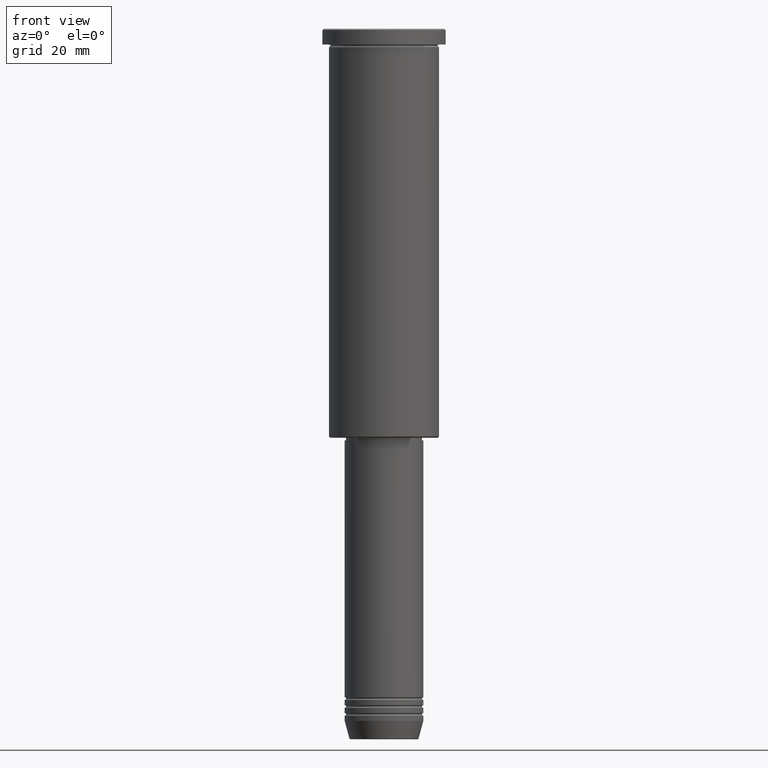
[diagram: clean part render]
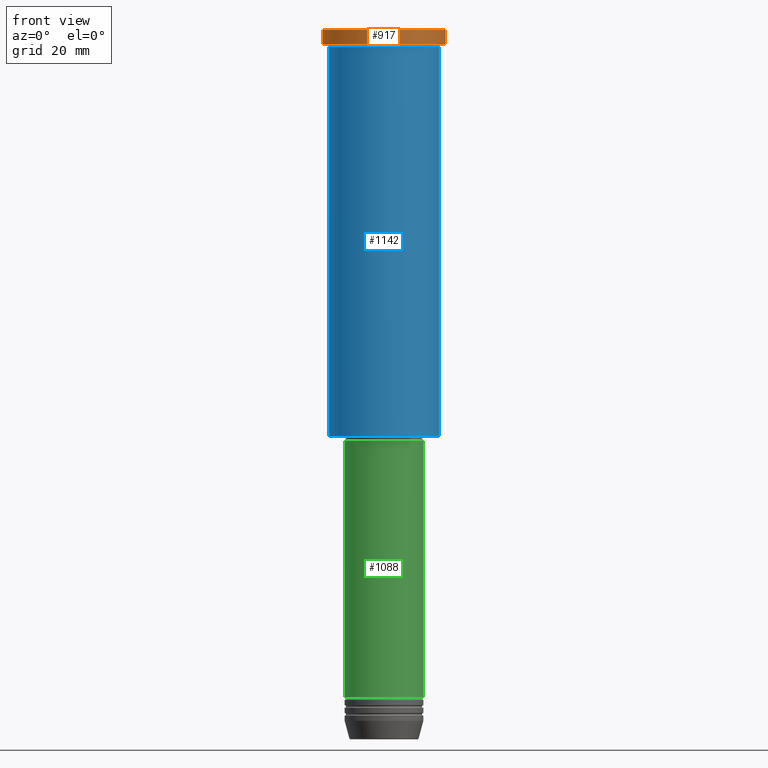
[diagram: same view with three faces highlighted in distinct colors, each labeled with its STEP entity id]
A machine part, front view with three faces highlighted in distinct colors.
Their STEP definitions:

[orange] entity #917 — the highlighted cylindrical surface (partial cylindrical patch) has radius 23.5 mm, axis along (-0, -0, 1).
#2 = CARTESIAN_POINT ( 'NONE',  ( 23.50000000000000000, 0.000000000000000000, 0.000000000000000000 ) ) ;
#45 = ORIENTED_EDGE ( 'NONE', *, *, #821, .T. ) ;
#116 = CARTESIAN_POINT ( 'NONE',  ( -23.50000000000000000, 2.877919977996280320E-15, -0.5000000000000004441 ) ) ;
#215 = CYLINDRICAL_SURFACE ( 'NONE', #244, 23.50000000000000000 ) ;
#244 = AXIS2_PLACEMENT_3D ( 'NONE', #873, #1127, #967 ) ;
#315 = DIRECTION ( 'NONE',  ( -0.000000000000000000, -0.000000000000000000, 1.000000000000000000 ) ) ;
#368 = CARTESIAN_POINT ( 'NONE',  ( -23.50000000000000000, 2.877919977996280320E-15, 0.000000000000000000 ) ) ;
#398 = VECTOR ( 'NONE', #466, 1000.000000000000000 ) ;
#422 = VERTEX_POINT ( 'NONE', #116 ) ;
#424 = DIRECTION ( 'NONE',  ( -0.000000000000000000, -0.000000000000000000, 1.000000000000000000 ) ) ;
#455 = AXIS2_PLACEMENT_3D ( 'NONE', #794, #424, #690 ) ;
#466 = DIRECTION ( 'NONE',  ( -0.000000000000000000, -0.000000000000000000, 1.000000000000000000 ) ) ;
#511 = VECTOR ( 'NONE', #315, 1000.000000000000000 ) ;
#537 = ORIENTED_EDGE ( 'NONE', *, *, #1109, .F. ) ;
#562 = CARTESIAN_POINT ( 'NONE',  ( 23.50000000000000000, 0.000000000000000000, -0.5000000000000004441 ) ) ;
#594 = FACE_OUTER_BOUND ( 'NONE', #1115, .T. ) ;
#611 = CARTESIAN_POINT ( 'NONE',  ( 0.000000000000000000, 0.000000000000000000, -0.5000000000000004441 ) ) ;
#639 = ORIENTED_EDGE ( 'NONE', *, *, #1056, .T. ) ;
#688 = AXIS2_PLACEMENT_3D ( 'NONE', #611, #904, #1162 ) ;
#690 = DIRECTION ( 'NONE',  ( 1.000000000000000000, 0.000000000000000000, 0.000000000000000000 ) ) ;
#775 = VERTEX_POINT ( 'NONE', #1145 ) ;
#776 = LINE ( 'NONE', #2, #511 ) ;
#794 = CARTESIAN_POINT ( 'NONE',  ( 0.000000000000000000, 0.000000000000000000, -5.999999999999994671 ) ) ;
#821 = EDGE_CURVE ( 'NONE', #926, #1128, #776, .T. ) ;
#873 = CARTESIAN_POINT ( 'NONE',  ( 0.000000000000000000, 0.000000000000000000, 0.000000000000000000 ) ) ;
#876 = EDGE_CURVE ( 'NONE', #775, #926, #1117, .T. ) ;
#891 = CARTESIAN_POINT ( 'NONE',  ( 23.50000000000000000, 0.000000000000000000, -5.999999999999994671 ) ) ;
#893 = ORIENTED_EDGE ( 'NONE', *, *, #876, .T. ) ;
#904 = DIRECTION ( 'NONE',  ( 0.000000000000000000, 0.000000000000000000, -1.000000000000000000 ) ) ;
#917 = ADVANCED_FACE ( 'NONE', ( #594 ), #215, .T. ) ;
#926 = VERTEX_POINT ( 'NONE', #891 ) ;
#967 = DIRECTION ( 'NONE',  ( 1.000000000000000000, 0.000000000000000000, 0.000000000000000000 ) ) ;
#1056 = EDGE_CURVE ( 'NONE', #1128, #422, #1135, .T. ) ;
#1084 = LINE ( 'NONE', #368, #398 ) ;
#1109 = EDGE_CURVE ( 'NONE', #775, #422, #1084, .T. ) ;
#1115 = EDGE_LOOP ( 'NONE', ( #537, #893, #45, #639 ) ) ;
#1117 = CIRCLE ( 'NONE', #455, 23.50000000000000000 ) ;
#1127 = DIRECTION ( 'NONE',  ( -0.000000000000000000, -0.000000000000000000, 1.000000000000000000 ) ) ;
#1128 = VERTEX_POINT ( 'NONE', #562 ) ;
#1135 = CIRCLE ( 'NONE', #688, 23.50000000000000000 ) ;
#1145 = CARTESIAN_POINT ( 'NONE',  ( -23.50000000000000000, 2.877919977996280320E-15, -5.999999999999994671 ) ) ;
#1162 = DIRECTION ( 'NONE',  ( 1.000000000000000000, 0.000000000000000000, 0.000000000000000000 ) ) ;

[blue] entity #1142 — the highlighted cylindrical surface (partial cylindrical patch) has radius 21 mm, axis along (-0, -0, 1).
#3 = DIRECTION ( 'NONE',  ( -0.000000000000000000, -0.000000000000000000, 1.000000000000000000 ) ) ;
#7 = DIRECTION ( 'NONE',  ( -0.000000000000000000, -0.000000000000000000, 1.000000000000000000 ) ) ;
#99 = EDGE_CURVE ( 'NONE', #737, #374, #1111, .T. ) ;
#104 = FACE_OUTER_BOUND ( 'NONE', #1105, .T. ) ;
#113 = CARTESIAN_POINT ( 'NONE',  ( 21.00000000000000000, 0.000000000000000000, 0.000000000000000000 ) ) ;
#170 = AXIS2_PLACEMENT_3D ( 'NONE', #733, #199, #1001 ) ;
#196 = CARTESIAN_POINT ( 'NONE',  ( 0.000000000000000000, 0.000000000000000000, -6.999999999999994671 ) ) ;
#199 = DIRECTION ( 'NONE',  ( -0.000000000000000000, -0.000000000000000000, 1.000000000000000000 ) ) ;
#230 = AXIS2_PLACEMENT_3D ( 'NONE', #196, #7, #953 ) ;
#341 = CARTESIAN_POINT ( 'NONE',  ( 21.00000000000000000, 0.000000000000000000, -155.4999999999999716 ) ) ;
#374 = VERTEX_POINT ( 'NONE', #648 ) ;
#392 = VECTOR ( 'NONE', #393, 1000.000000000000000 ) ;
#393 = DIRECTION ( 'NONE',  ( -0.000000000000000000, -0.000000000000000000, 1.000000000000000000 ) ) ;
#469 = CARTESIAN_POINT ( 'NONE',  ( 0.000000000000000000, 0.000000000000000000, -155.4999999999999716 ) ) ;
#492 = LINE ( 'NONE', #113, #392 ) ;
#566 = VECTOR ( 'NONE', #645, 1000.000000000000000 ) ;
#595 = EDGE_CURVE ( 'NONE', #374, #1099, #720, .T. ) ;
#597 = EDGE_CURVE ( 'NONE', #962, #1099, #492, .T. ) ;
#623 = AXIS2_PLACEMENT_3D ( 'NONE', #469, #3, #739 ) ;
#645 = DIRECTION ( 'NONE',  ( -0.000000000000000000, -0.000000000000000000, 1.000000000000000000 ) ) ;
#648 = CARTESIAN_POINT ( 'NONE',  ( -21.00000000000000000, 2.571758278209441661E-15, -6.999999999999994671 ) ) ;
#657 = CARTESIAN_POINT ( 'NONE',  ( -21.00000000000000000, 2.571758278209441661E-15, 0.000000000000000000 ) ) ;
#720 = CIRCLE ( 'NONE', #230, 21.00000000000000000 ) ;
#724 = CARTESIAN_POINT ( 'NONE',  ( 21.00000000000000000, 0.000000000000000000, -6.999999999999994671 ) ) ;
#730 = ORIENTED_EDGE ( 'NONE', *, *, #597, .T. ) ;
#733 = CARTESIAN_POINT ( 'NONE',  ( 0.000000000000000000, 0.000000000000000000, 0.000000000000000000 ) ) ;
#737 = VERTEX_POINT ( 'NONE', #771 ) ;
#739 = DIRECTION ( 'NONE',  ( -1.000000000000000000, 0.000000000000000000, 0.000000000000000000 ) ) ;
#750 = ORIENTED_EDGE ( 'NONE', *, *, #99, .F. ) ;
#755 = ORIENTED_EDGE ( 'NONE', *, *, #1161, .T. ) ;
#771 = CARTESIAN_POINT ( 'NONE',  ( -21.00000000000000000, 2.571758278209441661E-15, -155.4999999999999716 ) ) ;
#785 = CIRCLE ( 'NONE', #623, 21.00000000000000000 ) ;
#939 = CYLINDRICAL_SURFACE ( 'NONE', #170, 21.00000000000000000 ) ;
#951 = ORIENTED_EDGE ( 'NONE', *, *, #595, .F. ) ;
#953 = DIRECTION ( 'NONE',  ( 1.000000000000000000, 0.000000000000000000, 0.000000000000000000 ) ) ;
#962 = VERTEX_POINT ( 'NONE', #341 ) ;
#1001 = DIRECTION ( 'NONE',  ( 1.000000000000000000, 0.000000000000000000, 0.000000000000000000 ) ) ;
#1099 = VERTEX_POINT ( 'NONE', #724 ) ;
#1105 = EDGE_LOOP ( 'NONE', ( #750, #755, #730, #951 ) ) ;
#1111 = LINE ( 'NONE', #657, #566 ) ;
#1142 = ADVANCED_FACE ( 'NONE', ( #104 ), #939, .T. ) ;
#1161 = EDGE_CURVE ( 'NONE', #737, #962, #785, .T. ) ;

[green] entity #1088 — the highlighted cylindrical surface (partial cylindrical patch) has radius 15 mm, axis along (-0, -0, 1).
#42 = EDGE_CURVE ( 'NONE', #95, #1170, #251, .T. ) ;
#95 = VERTEX_POINT ( 'NONE', #274 ) ;
#115 = ORIENTED_EDGE ( 'NONE', *, *, #179, .T. ) ;
#164 = AXIS2_PLACEMENT_3D ( 'NONE', #1168, #734, #708 ) ;
#172 = DIRECTION ( 'NONE',  ( -0.000000000000000000, -0.000000000000000000, 1.000000000000000000 ) ) ;
#179 = EDGE_CURVE ( 'NONE', #519, #95, #841, .T. ) ;
#242 = DIRECTION ( 'NONE',  ( 1.000000000000000000, 0.000000000000000000, 0.000000000000000000 ) ) ;
#251 = LINE ( 'NONE', #831, #430 ) ;
#274 = CARTESIAN_POINT ( 'NONE',  ( 15.00000000000000000, 0.000000000000000000, -255.0000000000000000 ) ) ;
#316 = EDGE_CURVE ( 'NONE', #1074, #1170, #619, .T. ) ;
#370 = EDGE_CURVE ( 'NONE', #519, #1074, #465, .T. ) ;
#411 = CARTESIAN_POINT ( 'NONE',  ( -15.00000000000000000, 1.836970198721029589E-15, -255.0000000000000000 ) ) ;
#430 = VECTOR ( 'NONE', #1078, 1000.000000000000000 ) ;
#451 = CARTESIAN_POINT ( 'NONE',  ( 0.000000000000000000, 0.000000000000000000, -157.0000000000000000 ) ) ;
#465 = LINE ( 'NONE', #909, #804 ) ;
#519 = VERTEX_POINT ( 'NONE', #411 ) ;
#616 = FACE_OUTER_BOUND ( 'NONE', #725, .T. ) ;
#619 = CIRCLE ( 'NONE', #1114, 15.00000000000000000 ) ;
#634 = DIRECTION ( 'NONE',  ( 1.000000000000000000, 0.000000000000000000, 0.000000000000000000 ) ) ;
#708 = DIRECTION ( 'NONE',  ( 1.000000000000000000, 0.000000000000000000, 0.000000000000000000 ) ) ;
#716 = CYLINDRICAL_SURFACE ( 'NONE', #1119, 15.00000000000000000 ) ;
#725 = EDGE_LOOP ( 'NONE', ( #934, #115, #1053, #963 ) ) ;
#734 = DIRECTION ( 'NONE',  ( -0.000000000000000000, -0.000000000000000000, 1.000000000000000000 ) ) ;
#751 = CARTESIAN_POINT ( 'NONE',  ( 15.00000000000000000, 0.000000000000000000, -157.0000000000000000 ) ) ;
#804 = VECTOR ( 'NONE', #915, 1000.000000000000000 ) ;
#831 = CARTESIAN_POINT ( 'NONE',  ( 15.00000000000000000, 0.000000000000000000, 0.000000000000000000 ) ) ;
#841 = CIRCLE ( 'NONE', #164, 15.00000000000000000 ) ;
#909 = CARTESIAN_POINT ( 'NONE',  ( -15.00000000000000000, 1.836970198721029589E-15, 0.000000000000000000 ) ) ;
#915 = DIRECTION ( 'NONE',  ( -0.000000000000000000, -0.000000000000000000, 1.000000000000000000 ) ) ;
#934 = ORIENTED_EDGE ( 'NONE', *, *, #370, .F. ) ;
#963 = ORIENTED_EDGE ( 'NONE', *, *, #316, .F. ) ;
#1053 = ORIENTED_EDGE ( 'NONE', *, *, #42, .T. ) ;
#1068 = CARTESIAN_POINT ( 'NONE',  ( -15.00000000000000000, 1.836970198721029589E-15, -157.0000000000000000 ) ) ;
#1074 = VERTEX_POINT ( 'NONE', #1068 ) ;
#1075 = CARTESIAN_POINT ( 'NONE',  ( 0.000000000000000000, 0.000000000000000000, 0.000000000000000000 ) ) ;
#1078 = DIRECTION ( 'NONE',  ( -0.000000000000000000, -0.000000000000000000, 1.000000000000000000 ) ) ;
#1088 = ADVANCED_FACE ( 'NONE', ( #616 ), #716, .T. ) ;
#1090 = DIRECTION ( 'NONE',  ( -0.000000000000000000, -0.000000000000000000, 1.000000000000000000 ) ) ;
#1114 = AXIS2_PLACEMENT_3D ( 'NONE', #451, #1090, #634 ) ;
#1119 = AXIS2_PLACEMENT_3D ( 'NONE', #1075, #172, #242 ) ;
#1168 = CARTESIAN_POINT ( 'NONE',  ( 0.000000000000000000, 0.000000000000000000, -255.0000000000000000 ) ) ;
#1170 = VERTEX_POINT ( 'NONE', #751 ) ;